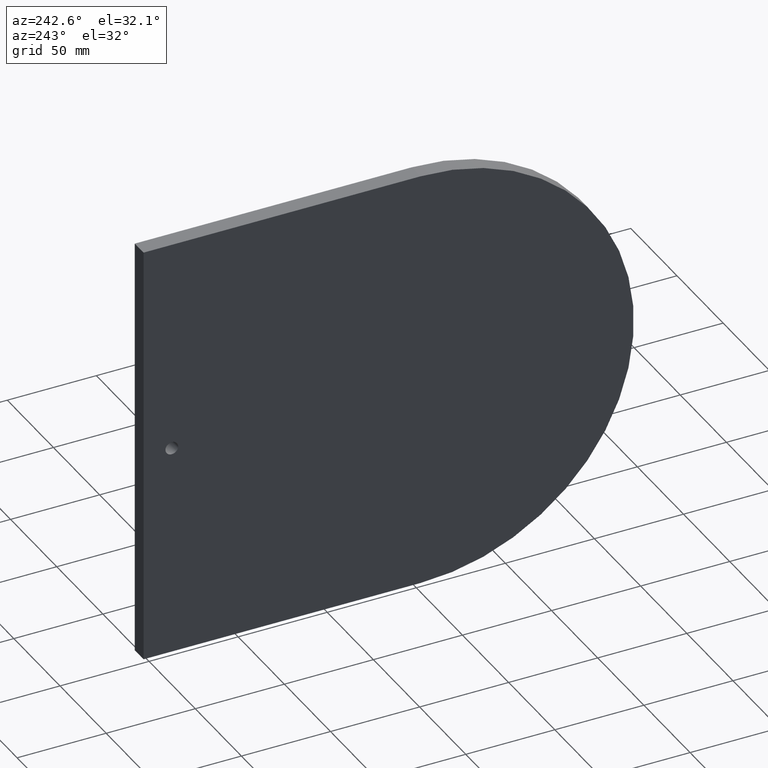
[diagram: clean part render]
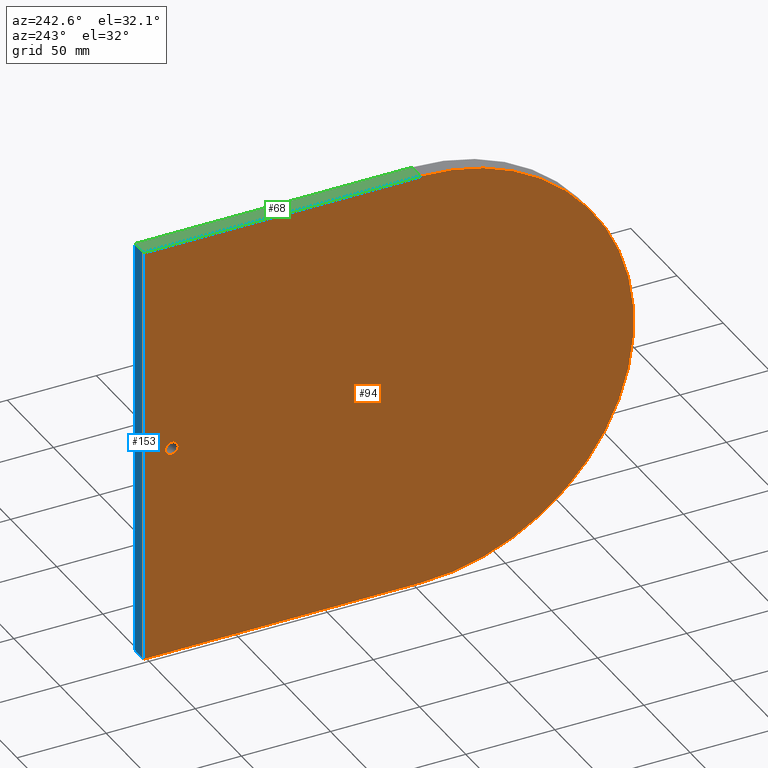
[diagram: same view with three faces highlighted in distinct colors, each labeled with its STEP entity id]
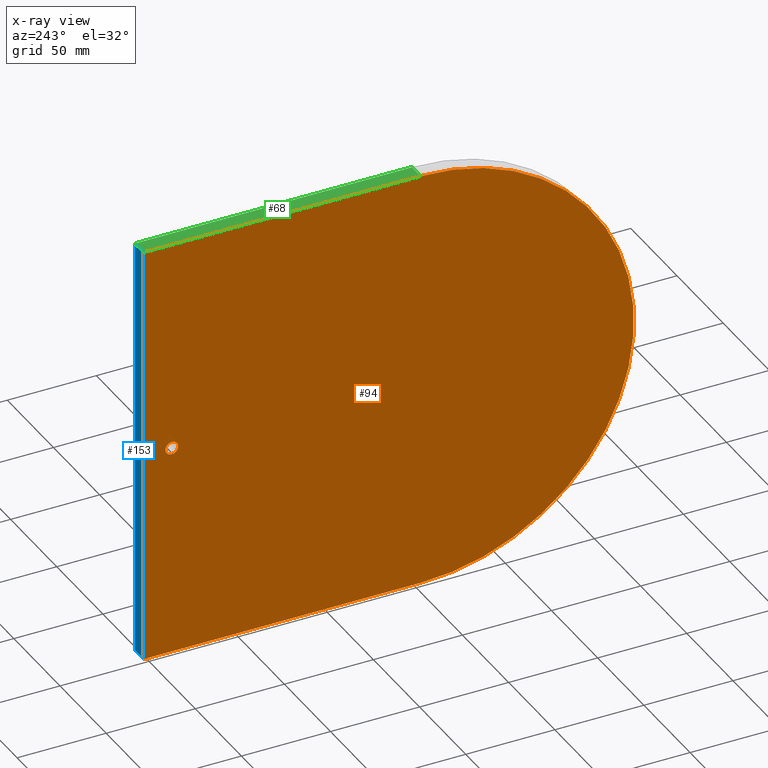
[diagram: x-ray of the same camera — body ghosted, the three highlighted faces saturated]
A machine part, auxiliary view with three faces highlighted in distinct colors.
The next image is the same camera in x-ray (body ghosted, the three faces saturated) — at least one of them is partly hidden behind the body in this view.
Their STEP definitions:

[orange] entity #94 — the highlighted planar face has unit normal (1, 0, 0).
#6 = VERTEX_POINT ( 'NONE', #130 ) ;
#8 = EDGE_CURVE ( 'NONE', #6, #72, #129, .T. ) ;
#15 = VERTEX_POINT ( 'NONE', #113 ) ;
#19 = EDGE_CURVE ( 'NONE', #15, #150, #108, .T. ) ;
#24 = EDGE_CURVE ( 'NONE', #25, #26, #60, .T. ) ;
#25 = VERTEX_POINT ( 'NONE', #55 ) ;
#26 = VERTEX_POINT ( 'NONE', #54 ) ;
#54 = CARTESIAN_POINT ( 'NONE',  ( -0.1875000000000000300, 5.500000000000000000, -0.1406250000000001400 ) ) ;
#55 = CARTESIAN_POINT ( 'NONE',  ( -0.1875000000000000300, 5.500000000000000000, 0.1406250000000001400 ) ) ;
#56 = DIRECTION ( 'NONE',  ( 0.0000000000000000000, 0.0000000000000000000, -1.000000000000000000 ) ) ;
#57 = DIRECTION ( 'NONE',  ( 1.000000000000000000, 0.0000000000000000000, 0.0000000000000000000 ) ) ;
#58 = CARTESIAN_POINT ( 'NONE',  ( -0.1875000000000000300, 5.500000000000000000, 0.0000000000000000000 ) ) ;
#59 = AXIS2_PLACEMENT_3D ( 'NONE', #58, #57, #56 ) ;
#60 = CIRCLE ( 'NONE', #59, 0.1406250000000001400 ) ;
#72 = VERTEX_POINT ( 'NONE', #315 ) ;
#83 = ORIENTED_EDGE ( 'NONE', *, *, #88, .T. ) ;
#88 = EDGE_CURVE ( 'NONE', #15, #72, #169, .T. ) ;
#89 = ORIENTED_EDGE ( 'NONE', *, *, #8, .F. ) ;
#90 = ORIENTED_EDGE ( 'NONE', *, *, #19, .F. ) ;
#91 = ORIENTED_EDGE ( 'NONE', *, *, #141, .F. ) ;
#92 = EDGE_LOOP ( 'NONE', ( #95, #97 ) ) ;
#94 = ADVANCED_FACE ( 'NONE', ( #307, #306 ), #303, .F. ) ;
#95 = ORIENTED_EDGE ( 'NONE', *, *, #96, .T. ) ;
#96 = EDGE_CURVE ( 'NONE', #26, #25, #159, .T. ) ;
#97 = ORIENTED_EDGE ( 'NONE', *, *, #24, .T. ) ;
#98 = EDGE_LOOP ( 'NONE', ( #90, #83, #89, #91 ) ) ;
#105 = DIRECTION ( 'NONE',  ( -0.0000000000000000000, 1.000000000000000000, 4.460159989655940100E-017 ) ) ;
#106 = VECTOR ( 'NONE', #105, 39.37007874015748100 ) ;
#107 = CARTESIAN_POINT ( 'NONE',  ( -0.1875000000000000300, 6.125000000000000000, -4.709374999999999600 ) ) ;
#108 = LINE ( 'NONE', #107, #106 ) ;
#113 = CARTESIAN_POINT ( 'NONE',  ( -0.1875000000000000300, 0.0000000000000000000, -4.709374999999999600 ) ) ;
#126 = DIRECTION ( 'NONE',  ( 0.0000000000000000000, -1.000000000000000000, -1.338047996896781900E-016 ) ) ;
#127 = VECTOR ( 'NONE', #126, 39.37007874015748100 ) ;
#128 = CARTESIAN_POINT ( 'NONE',  ( -0.1875000000000000300, 6.125000000000000000, 4.709374999999999600 ) ) ;
#129 = LINE ( 'NONE', #128, #127 ) ;
#130 = CARTESIAN_POINT ( 'NONE',  ( -0.1875000000000000300, 6.125000000000000000, 4.709374999999999600 ) ) ;
#141 = EDGE_CURVE ( 'NONE', #150, #6, #160, .T. ) ;
#150 = VERTEX_POINT ( 'NONE', #239 ) ;
#156 = DIRECTION ( 'NONE',  ( 1.000000000000000000, 0.0000000000000000000, 0.0000000000000000000 ) ) ;
#157 = CARTESIAN_POINT ( 'NONE',  ( -0.1875000000000000300, 5.500000000000000000, 0.0000000000000000000 ) ) ;
#158 = AXIS2_PLACEMENT_3D ( 'NONE', #157, #156, #302 ) ;
#159 = CIRCLE ( 'NONE', #158, 0.1406250000000001400 ) ;
#160 = LINE ( 'NONE', #301, #300 ) ;
#161 = DIRECTION ( 'NONE',  ( 0.0000000000000000000, 0.0000000000000000000, -1.000000000000000000 ) ) ;
#162 = DIRECTION ( 'NONE',  ( 1.000000000000000000, 0.0000000000000000000, 0.0000000000000000000 ) ) ;
#169 = CIRCLE ( 'NONE', #310, 4.709374999999999600 ) ;
#170 = CARTESIAN_POINT ( 'NONE',  ( -0.1875000000000000300, 0.0000000000000000000, 0.0000000000000000000 ) ) ;
#239 = CARTESIAN_POINT ( 'NONE',  ( -0.1875000000000000300, 6.125000000000000000, -4.709374999999999600 ) ) ;
#299 = DIRECTION ( 'NONE',  ( -0.0000000000000000000, -0.0000000000000000000, 1.000000000000000000 ) ) ;
#300 = VECTOR ( 'NONE', #299, 39.37007874015748100 ) ;
#301 = CARTESIAN_POINT ( 'NONE',  ( -0.1875000000000000300, 6.125000000000000000, 4.709374999999999600 ) ) ;
#302 = DIRECTION ( 'NONE',  ( 0.0000000000000000000, 0.0000000000000000000, -1.000000000000000000 ) ) ;
#303 = PLANE ( 'NONE',  #305 ) ;
#304 = CARTESIAN_POINT ( 'NONE',  ( -0.1875000000000000300, -6.125000000000000000, 4.709374999999997900 ) ) ;
#305 = AXIS2_PLACEMENT_3D ( 'NONE', #304, #162, #161 ) ;
#306 = FACE_OUTER_BOUND ( 'NONE', #98, .T. ) ;
#307 = FACE_BOUND ( 'NONE', #92, .T. ) ;
#308 = DIRECTION ( 'NONE',  ( 0.0000000000000000000, 0.0000000000000000000, -1.000000000000000000 ) ) ;
#309 = DIRECTION ( 'NONE',  ( -1.000000000000000000, -0.0000000000000000000, -0.0000000000000000000 ) ) ;
#310 = AXIS2_PLACEMENT_3D ( 'NONE', #170, #309, #308 ) ;
#315 = CARTESIAN_POINT ( 'NONE',  ( -0.1875000000000000300, -6.301369785385781500E-016, 4.709374999999999600 ) ) ;

[blue] entity #153 — the highlighted planar face has unit normal (0, -1, 0).
#3 = VERTEX_POINT ( 'NONE', #135 ) ;
#5 = EDGE_CURVE ( 'NONE', #3, #6, #134, .T. ) ;
#6 = VERTEX_POINT ( 'NONE', #130 ) ;
#14 = VERTEX_POINT ( 'NONE', #114 ) ;
#114 = CARTESIAN_POINT ( 'NONE',  ( 0.1875000000000000300, 6.125000000000000000, -4.709374999999999600 ) ) ;
#130 = CARTESIAN_POINT ( 'NONE',  ( -0.1875000000000000300, 6.125000000000000000, 4.709374999999999600 ) ) ;
#131 = DIRECTION ( 'NONE',  ( -1.000000000000000000, -0.0000000000000000000, -0.0000000000000000000 ) ) ;
#132 = VECTOR ( 'NONE', #131, 39.37007874015748100 ) ;
#133 = CARTESIAN_POINT ( 'NONE',  ( 0.1875000000000000300, 6.125000000000000000, 4.709374999999999600 ) ) ;
#134 = LINE ( 'NONE', #133, #132 ) ;
#135 = CARTESIAN_POINT ( 'NONE',  ( 0.1875000000000000300, 6.125000000000000000, 4.709374999999999600 ) ) ;
#140 = ORIENTED_EDGE ( 'NONE', *, *, #141, .T. ) ;
#141 = EDGE_CURVE ( 'NONE', #150, #6, #160, .T. ) ;
#142 = ORIENTED_EDGE ( 'NONE', *, *, #5, .F. ) ;
#143 = ORIENTED_EDGE ( 'NONE', *, *, #144, .F. ) ;
#144 = EDGE_CURVE ( 'NONE', #14, #3, #298, .T. ) ;
#145 = ORIENTED_EDGE ( 'NONE', *, *, #152, .T. ) ;
#150 = VERTEX_POINT ( 'NONE', #239 ) ;
#152 = EDGE_CURVE ( 'NONE', #14, #150, #238, .T. ) ;
#153 = ADVANCED_FACE ( 'NONE', ( #234 ), #233, .F. ) ;
#154 = EDGE_LOOP ( 'NONE', ( #140, #142, #143, #145 ) ) ;
#160 = LINE ( 'NONE', #301, #300 ) ;
#229 = DIRECTION ( 'NONE',  ( 0.0000000000000000000, -0.0000000000000000000, -1.000000000000000000 ) ) ;
#230 = DIRECTION ( 'NONE',  ( 0.0000000000000000000, -1.000000000000000000, 0.0000000000000000000 ) ) ;
#231 = CARTESIAN_POINT ( 'NONE',  ( 0.1875000000000000300, 6.125000000000000000, 4.709374999999999600 ) ) ;
#232 = AXIS2_PLACEMENT_3D ( 'NONE', #231, #230, #229 ) ;
#233 = PLANE ( 'NONE',  #232 ) ;
#234 = FACE_OUTER_BOUND ( 'NONE', #154, .T. ) ;
#235 = DIRECTION ( 'NONE',  ( -1.000000000000000000, -0.0000000000000000000, -0.0000000000000000000 ) ) ;
#236 = VECTOR ( 'NONE', #235, 39.37007874015748100 ) ;
#237 = CARTESIAN_POINT ( 'NONE',  ( 0.1875000000000000300, 6.125000000000000000, -4.709374999999999600 ) ) ;
#238 = LINE ( 'NONE', #237, #236 ) ;
#239 = CARTESIAN_POINT ( 'NONE',  ( -0.1875000000000000300, 6.125000000000000000, -4.709374999999999600 ) ) ;
#295 = DIRECTION ( 'NONE',  ( -0.0000000000000000000, -0.0000000000000000000, 1.000000000000000000 ) ) ;
#296 = VECTOR ( 'NONE', #295, 39.37007874015748100 ) ;
#297 = CARTESIAN_POINT ( 'NONE',  ( 0.1875000000000000300, 6.125000000000000000, 4.709374999999999600 ) ) ;
#298 = LINE ( 'NONE', #297, #296 ) ;
#299 = DIRECTION ( 'NONE',  ( -0.0000000000000000000, -0.0000000000000000000, 1.000000000000000000 ) ) ;
#300 = VECTOR ( 'NONE', #299, 39.37007874015748100 ) ;
#301 = CARTESIAN_POINT ( 'NONE',  ( -0.1875000000000000300, 6.125000000000000000, 4.709374999999999600 ) ) ;

[green] entity #68 — the highlighted planar face has unit normal (0, 0, -1).
#1 = ORIENTED_EDGE ( 'NONE', *, *, #2, .F. ) ;
#2 = EDGE_CURVE ( 'NONE', #3, #73, #139, .T. ) ;
#3 = VERTEX_POINT ( 'NONE', #135 ) ;
#4 = ORIENTED_EDGE ( 'NONE', *, *, #5, .T. ) ;
#5 = EDGE_CURVE ( 'NONE', #3, #6, #134, .T. ) ;
#6 = VERTEX_POINT ( 'NONE', #130 ) ;
#7 = ORIENTED_EDGE ( 'NONE', *, *, #8, .T. ) ;
#8 = EDGE_CURVE ( 'NONE', #6, #72, #129, .T. ) ;
#68 = ADVANCED_FACE ( 'NONE', ( #179 ), #181, .F. ) ;
#69 = EDGE_LOOP ( 'NONE', ( #70, #1, #4, #7 ) ) ;
#70 = ORIENTED_EDGE ( 'NONE', *, *, #71, .T. ) ;
#71 = EDGE_CURVE ( 'NONE', #72, #73, #177, .T. ) ;
#72 = VERTEX_POINT ( 'NONE', #315 ) ;
#73 = VERTEX_POINT ( 'NONE', #314 ) ;
#126 = DIRECTION ( 'NONE',  ( 0.0000000000000000000, -1.000000000000000000, -1.338047996896781900E-016 ) ) ;
#127 = VECTOR ( 'NONE', #126, 39.37007874015748100 ) ;
#128 = CARTESIAN_POINT ( 'NONE',  ( -0.1875000000000000300, 6.125000000000000000, 4.709374999999999600 ) ) ;
#129 = LINE ( 'NONE', #128, #127 ) ;
#130 = CARTESIAN_POINT ( 'NONE',  ( -0.1875000000000000300, 6.125000000000000000, 4.709374999999999600 ) ) ;
#131 = DIRECTION ( 'NONE',  ( -1.000000000000000000, -0.0000000000000000000, -0.0000000000000000000 ) ) ;
#132 = VECTOR ( 'NONE', #131, 39.37007874015748100 ) ;
#133 = CARTESIAN_POINT ( 'NONE',  ( 0.1875000000000000300, 6.125000000000000000, 4.709374999999999600 ) ) ;
#134 = LINE ( 'NONE', #133, #132 ) ;
#135 = CARTESIAN_POINT ( 'NONE',  ( 0.1875000000000000300, 6.125000000000000000, 4.709374999999999600 ) ) ;
#136 = DIRECTION ( 'NONE',  ( 0.0000000000000000000, -1.000000000000000000, -1.338047996896781900E-016 ) ) ;
#137 = VECTOR ( 'NONE', #136, 39.37007874015748100 ) ;
#138 = CARTESIAN_POINT ( 'NONE',  ( 0.1875000000000000300, 6.125000000000000000, 4.709374999999999600 ) ) ;
#139 = LINE ( 'NONE', #138, #137 ) ;
#175 = VECTOR ( 'NONE', #316, 39.37007874015748100 ) ;
#176 = CARTESIAN_POINT ( 'NONE',  ( -0.1875000000000000300, 0.0000000000000000000, 4.709374999999999600 ) ) ;
#177 = LINE ( 'NONE', #176, #175 ) ;
#178 = DIRECTION ( 'NONE',  ( 0.0000000000000000000, 1.000000000000000000, 1.338047996896782200E-016 ) ) ;
#179 = FACE_OUTER_BOUND ( 'NONE', #69, .T. ) ;
#180 = AXIS2_PLACEMENT_3D ( 'NONE', #188, #187, #178 ) ;
#181 = PLANE ( 'NONE',  #180 ) ;
#187 = DIRECTION ( 'NONE',  ( 0.0000000000000000000, 1.338047996896782200E-016, -1.000000000000000000 ) ) ;
#188 = CARTESIAN_POINT ( 'NONE',  ( 0.1875000000000000300, 6.125000000000000000, 4.709374999999999600 ) ) ;
#314 = CARTESIAN_POINT ( 'NONE',  ( 0.1875000000000000300, 0.0000000000000000000, 4.709374999999999600 ) ) ;
#315 = CARTESIAN_POINT ( 'NONE',  ( -0.1875000000000000300, -6.301369785385781500E-016, 4.709374999999999600 ) ) ;
#316 = DIRECTION ( 'NONE',  ( 1.000000000000000000, -0.0000000000000000000, -0.0000000000000000000 ) ) ;